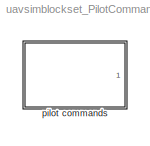
MODEL uavsimblockset_PilotCommands
KIND library
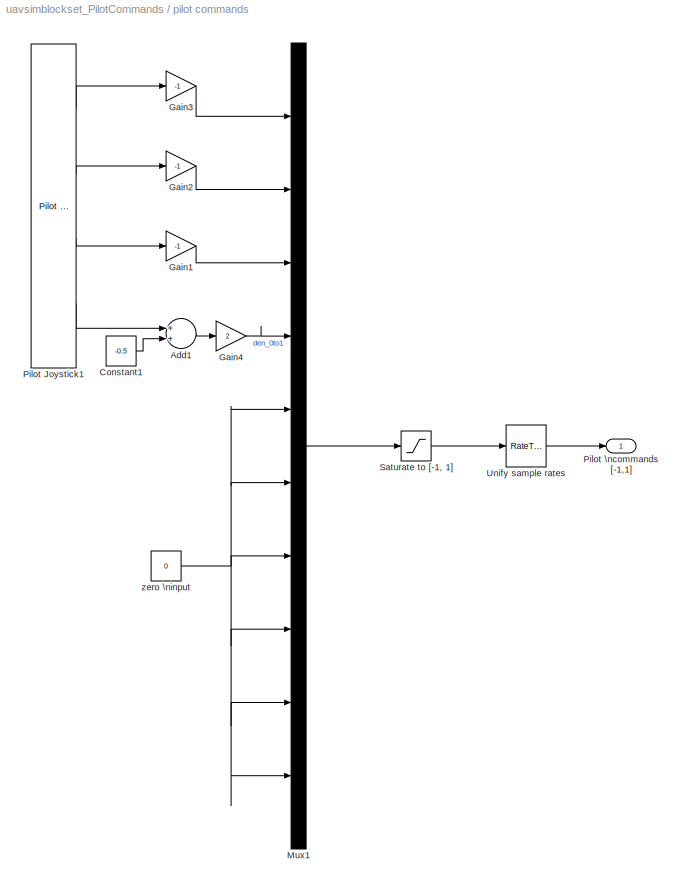
BLOCK [SubSystem] pilot commands
  FunctionWithSeparateData = off
  MaskHideContents = off
  MinAlgLoopOccurrences = off
  Opaque = off
  Ports = [0, 1]
  PropExecContextOutsideSubsystem = off
  RTWSystemCode = Auto
  RequestExecContextInheritance = off
  SID = 1
BLOCK [Sum] pilot commands/Add1
  InputSameDT = off
  OutDataTypeStr = Inherit: Inherit via internal rule
  Ports = [2, 1]
  SID = 4279
  SaturateOnIntegerOverflow = off
BLOCK [Constant] pilot commands/Constant1
  SID = 4280
  Value = -0.5
BLOCK [Gain] pilot commands/Gain1
  Gain = -1
  OutDataTypeStr = Inherit: Inherit via internal rule
  ParamDataTypeStr = Inherit: Inherit via internal rule
  SID = 4285
  SaturateOnIntegerOverflow = off
BLOCK [Gain] pilot commands/Gain2
  Gain = -1
  OutDataTypeStr = Inherit: Inherit via internal rule
  ParamDataTypeStr = Inherit: Inherit via internal rule
  SID = 4286
  SaturateOnIntegerOverflow = off
BLOCK [Gain] pilot commands/Gain3
  Gain = -1
  OutDataTypeStr = Inherit: Inherit via internal rule
  ParamDataTypeStr = Inherit: Inherit via internal rule
  SID = 4287
  SaturateOnIntegerOverflow = off
BLOCK [Gain] pilot commands/Gain4
  Gain = 2
  OutDataTypeStr = Inherit: Inherit via internal rule
  ParamDataTypeStr = Inherit: Inherit via internal rule
  SID = 4281
  SaturateOnIntegerOverflow = off
BLOCK [Mux] pilot commands/Mux1
  DisplayOption = bar
  Inputs = 10
  Ports = [10, 1]
  SID = 1859
BLOCK [Reference] pilot commands/Pilot Joystick1  REF=aerolibanimutils/Pilot Joystick
  JoystickID = Joystick1
  OutputConfiguration = FourAxis
  Ports = [0, 4]
  SID = 1860
  SampleTime = 1/10
  SourceBlock = aerolibanimutils/Pilot Joystick
  SourceType = PilotJoystick
BLOCK [Outport] pilot commands/Pilot \ncommands [-1,1]
  IconDisplay = Port number
  SID = 1862
BLOCK [Saturate] pilot commands/Saturate to [-1, 1]
  InputPortMap = u0
  LowerLimit = -1
  Ports = [1, 1]
  SID = 4283
  UpperLimit = 1
BLOCK [RateTransition] pilot commands/Unify sample rates
  SID = 4271
BLOCK [Constant] pilot commands/zero \ninput
  SID = 1861
  Value = 0
LINE pilot commands/Add1:1 -> pilot commands/Gain4:1
LINE pilot commands/Constant1:1 -> pilot commands/Add1:2
LINE pilot commands/Gain1:1 -> pilot commands/Mux1:3
LINE pilot commands/Gain2:1 -> pilot commands/Mux1:2
LINE pilot commands/Gain3:1 -> pilot commands/Mux1:1
LINE pilot commands/Gain4:1 -> pilot commands/Mux1:4
LINE pilot commands/Mux1:1 -> pilot commands/Saturate to [-1, 1]:1
LINE pilot commands/Pilot Joystick1:1 -> pilot commands/Gain3:1
LINE pilot commands/Pilot Joystick1:2 -> pilot commands/Gain2:1
LINE pilot commands/Pilot Joystick1:3 -> pilot commands/Gain1:1
LINE pilot commands/Pilot Joystick1:4 -> pilot commands/Add1:1
LINE pilot commands/Saturate to [-1, 1]:1 -> pilot commands/Unify sample rates:1
LINE pilot commands/Unify sample rates:1 -> pilot commands/Pilot \ncommands [-1,1]:1
NET pilot commands/zero \ninput:1 -> pilot commands/Mux1:10, pilot commands/Mux1:5, pilot commands/Mux1:6, pilot commands/Mux1:7, pilot commands/Mux1:8, pilot commands/Mux1:9
note: NET lines group one-source signal fan-out (src -> all destinations, sorted); 1:1 wires keep LINE
